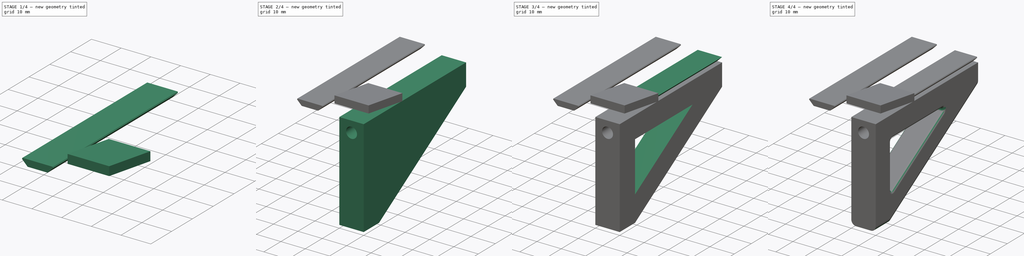
[diagram: build sequence overview — one tinted view per stage of 4, left to right]
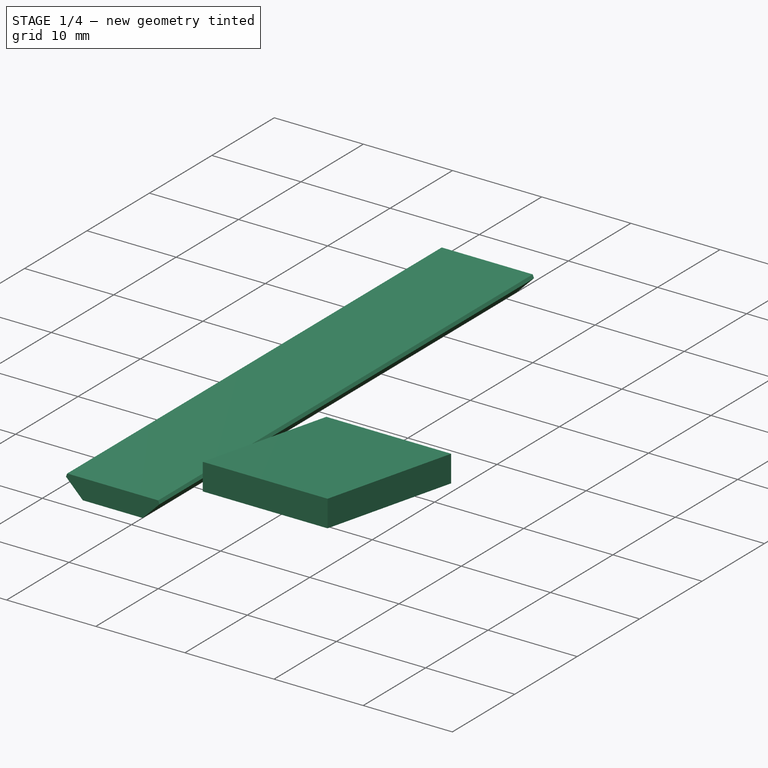
[diagram: stage 1 of 4 — iso view after this stage's code; geometry added in this stage tinted green]
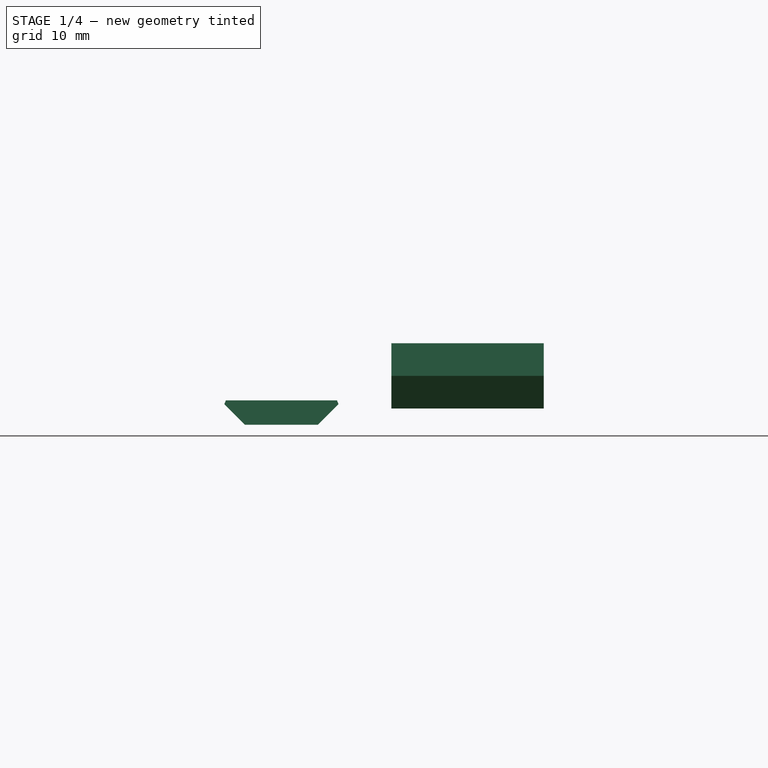
[diagram: stage 1 of 4 — front view after this stage's code; geometry added in this stage tinted green]
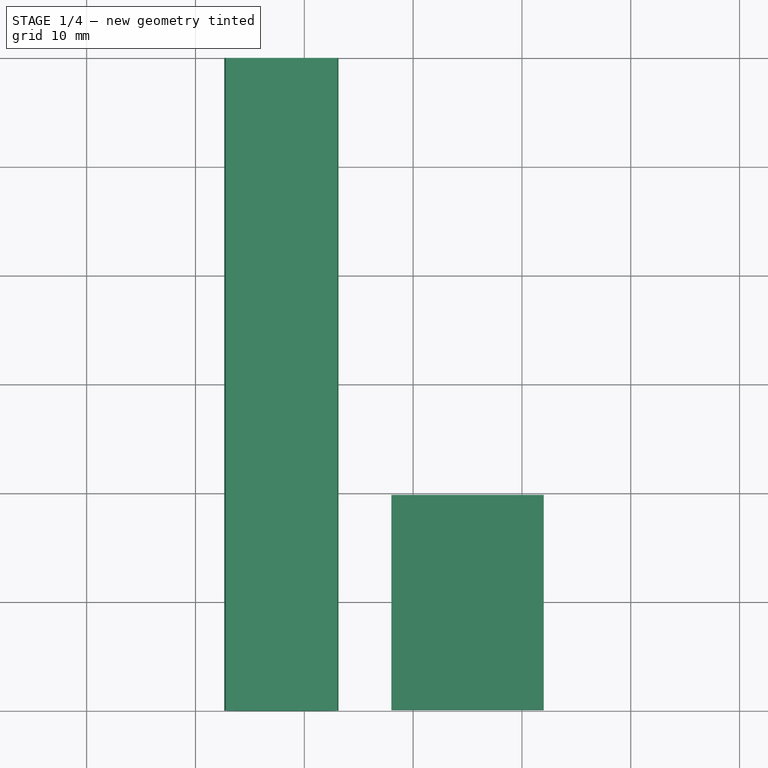
[diagram: stage 1 of 4 — top view after this stage's code; geometry added in this stage tinted green]
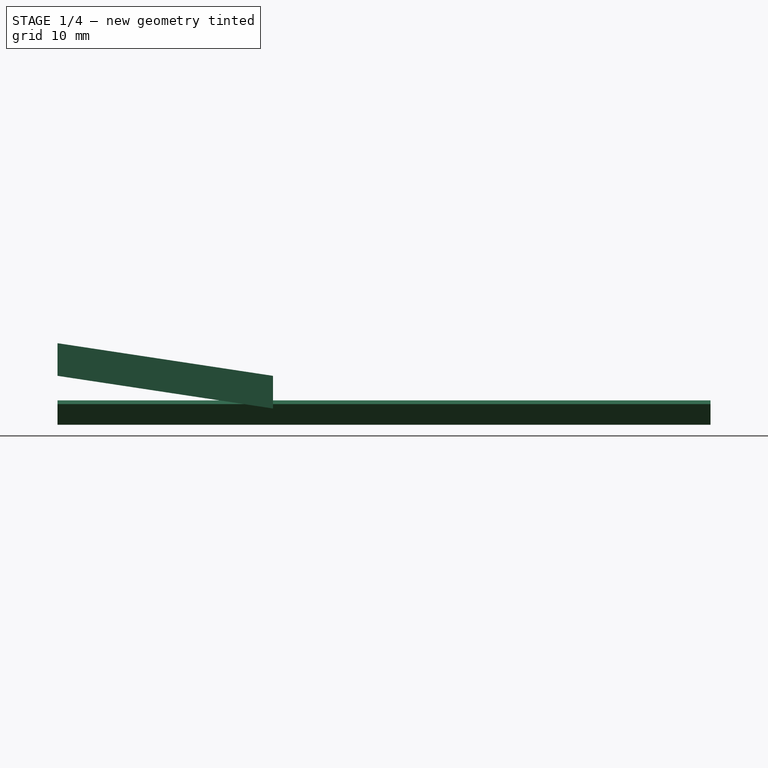
[diagram: stage 1 of 4 — right view after this stage's code; geometry added in this stage tinted green]
FCSTD DOCUMENT  (FreeCAD 0.19R23721 (Git))
Label: generic mount
License: All rights reserved
LicenseURL: http://en.wikipedia.org/wiki/All_rights_reserved
objects: Sketcher::SketchObject×8, PartDesign::Pad×3, PartDesign::Pocket×3, PartDesign::Body×3, PartDesign::Chamfer×2, PartDesign::Fillet×2, Spreadsheet::Sheet×1, PartDesign::AdditiveLoft×1
note: 33 computed .brp shape members not serialized (recipe doc carries the construction recipe); baked Part::Feature solids carry a one-line shape summary decoded from their .brp

FEATURE [PartDesign::Body] Body  label="mount"
  Group = -> [Sketch,Pad,Sketch001,Pocket,Sketch002,Pocket002,Pocket001,Sketch003,Pad001,Sketch004,Chamfer,Fillet,Fillet001]
  Origin = -> Origin
  Tip = -> Fillet001
FEATURE [Sketcher::SketchObject] Sketch005
  FullyConstrained = true
  MapMode = 5
  Placement = pos=(0,0,0) rot=(0,0.707107,0.707107;3.14159rad)
  Support = -> [XZ_Plane001]
  expr: Constraints[8] = <<dim>>.thickness + 2 * <<dim>>.dt_support_over
  expr: Constraints[9] = <<dim>>.dt_support_width
  expr: Constraints[10] = <<dim>>.dovetail_height - <<dim>>.dt_support_overlap + <<dim>>.dt_support_base_offset
  expr: Constraints[11] = <<dim>>.dt_support_over
  sketch-geometry (4):
    g0: LineSegment StartX=-12 StartY=7.5 StartZ=0 EndX=2 EndY=7.5 EndZ=0
    g1: LineSegment StartX=2 StartY=7.5 StartZ=0 EndX=2 EndY=4.5 EndZ=0
    g2: LineSegment StartX=2 StartY=4.5 StartZ=0 EndX=-12 EndY=4.5 EndZ=0
    g3: LineSegment StartX=-12 StartY=4.5 StartZ=0 EndX=-12 EndY=7.5 EndZ=0
  constraints (12):
    c: Coincident(g0,g1)
    c: Coincident(g1,g2)
    c: Coincident(g2,g3)
    c: Coincident(g3,g0)
    c: Horizontal(g0)
    c: Horizontal(g2)
    c: Vertical(g1)
    c: Vertical(g3)
    c: DistanceX(g0,g0) = 14
    c: DistanceY(g3,g3) = 3
    c: DistanceY(g-1,g2) = 4.5
    c: DistanceX(g-1,g1) = 2
FEATURE [Sketcher::SketchObject] Sketch006
  AttachmentOffset = pos=(0,0,19.8) rot=(0,0,1;0rad)
  FullyConstrained = true
  MapMode = 5
  Placement = pos=(0,19.8,4.4e-15) rot=(0,0.707107,0.707107;3.14159rad)
  Support = -> [XZ_Plane001]
  expr: .AttachmentOffset.Base.z = <<dim>>.dovetail_wall_offset - <<dim>>.dt_support_z_sep
  expr: Constraints[8] = <<dim>>.thickness + 2 * <<dim>>.dt_support_over
  expr: Constraints[9] = Sketch005.Constraints[9]
  expr: Constraints[10] = <<dim>>.dovetail_height - <<dim>>.dt_support_overlap
  expr: Constraints[11] = <<dim>>.dt_support_over
  sketch-geometry (4):
    g0: LineSegment StartX=-12 StartY=4.5 StartZ=0 EndX=2 EndY=4.5 EndZ=0
    g1: LineSegment StartX=2 StartY=4.5 StartZ=0 EndX=2 EndY=1.5 EndZ=0
    g2: LineSegment StartX=2 StartY=1.5 StartZ=0 EndX=-12 EndY=1.5 EndZ=0
    g3: LineSegment StartX=-12 StartY=1.5 StartZ=0 EndX=-12 EndY=4.5 EndZ=0
  constraints (12):
    c: Coincident(g0,g1)
    c: Coincident(g1,g2)
    c: Coincident(g2,g3)
    c: Coincident(g3,g0)
    c: Horizontal(g0)
    c: Horizontal(g2)
    c: Vertical(g1)
    c: Vertical(g3)
    c: DistanceX(g0,g0) = 14
    c: DistanceY(g3,g3) = 3
    c: DistanceY(g-1,g2) = 1.5
    c: DistanceX(g-1,g1) = 2
FEATURE [PartDesign::AdditiveLoft] AdditiveLoft
  Closed = false
  Placement = pos=(0,0,0) rot=(1,0,0;1.5708rad)
  Profile = -> Sketch006
  Ruled = false
  Sections = -> [Sketch005]
FEATURE [PartDesign::Body] Body001  label="dovetail support"
  Group = -> [Sketch005,Sketch006,AdditiveLoft]
  Origin = -> Origin001
  Tip = -> AdditiveLoft
FEATURE [Sketcher::SketchObject] Sketch007
  FullyConstrained = false
  MapMode = 5
  Placement = pos=(0,0,0) rot=(0,0.707107,0.707107;3.14159rad)
  Support = -> [XZ_Plane002]
  expr: Constraints[6] = <<dim>>.dovetail_height
  expr: Constraints[9] = <<dim>>.dovetail_width_outer
  expr: Constraints[16] = <<dim>>.dovetail_slot_slack
  expr: Constraints[8] = <<dim>>.dovetail_width_inner
  expr: Constraints[20] = <<dim>>.dovetail_slot_slack
  sketch-geometry (10):
    g0: LineSegment StartX=7.10111 StartY=2 StartZ=0 EndX=17.1011 EndY=2 EndZ=0
    g1: LineSegment StartX=17.1011 StartY=2 StartZ=0 EndX=15.1011 EndY=0 EndZ=0
    g2: LineSegment StartX=7.10111 StartY=2 StartZ=0 EndX=9.10111 EndY=0 EndZ=0
    g3: LineSegment StartX=9.10111 StartY=0 StartZ=0 EndX=15.1011 EndY=0 EndZ=0
    g4: LineSegment StartX=6.49756 StartY=2.25 StartZ=0 EndX=17.7047 EndY=2.25 EndZ=0
    g5: LineSegment StartX=17.7047 StartY=2.25 StartZ=0 EndX=15.4547 EndY=0 EndZ=0
    g6: LineSegment StartX=15.4547 StartY=0 StartZ=0 EndX=8.74756 EndY=0 EndZ=0
    g7: LineSegment StartX=8.74756 StartY=0 StartZ=0 EndX=6.49756 EndY=2.25 EndZ=0
    g8: LineSegment StartX=17.1011 StartY=2 StartZ=0 EndX=17.2779 EndY=1.82322 EndZ=0
    g9: LineSegment StartX=7.10111 StartY=2 StartZ=0 EndX=6.92433 EndY=1.82322 EndZ=0
  constraints (29):
    c: Horizontal(g0)
    c: Coincident(g0,g1)
    c: Coincident(g2,g0)
    c: Coincident(g3,g2)
    c: Coincident(g3,g1)
    c: Horizontal(g3)
    c: DistanceY(g2,g0) = 2
    c: Equal(g2,g1)
    c: DistanceX(g3,g3) = 6
    c: DistanceX(g0,g0) = 10
    c: Horizontal(g4)
    c: Coincident(g4,g5)
    c: Coincident(g5,g6)
    c: Coincident(g6,g7)
    c: Coincident(g7,g4)
    c: Parallel(g7,g2)
    c: DistanceY(g0,g4) = 0.25
    c: Coincident(g8,g0)
    c: PointOnObject(g8,g5)
    c: Perpendicular(g5,g8)
    c: Distance(g8) = 0.25
    c: Equal(g7,g5)
    c: Coincident(g9,g0)
    c: PointOnObject(g9,g7)
    c: Perpendicular(g7,g9)
    c: Equal(g9,g8)
    c: Horizontal(g6)
    c: Horizontal(g1,g5)
    c: Horizontal(g5,g-1)
FEATURE [PartDesign::Pad] Pad002
  Direction = (1,1,1)
  Length = 60
  Length2 = 100
  Placement = pos=(0,0,0) rot=(1,0,0;1.5708rad)
  Profile = -> Sketch007
  Type = 0
  expr: Length = <<dim>>.dovetail_slot_length
FEATURE [PartDesign::Chamfer] Chamfer001
  Angle = 45
  Base = -> Pad002 [Edge2,Edge1]
  BaseFeature = -> Pad002
  ChamferType = 0
  FlipDirection = false
  Placement = pos=(0,0,0) rot=(1,0,0;1.5708rad)
  Size = 0.5
  Size2 = 1
  SupportTransform = false
  expr: Size = <<dim>>.dovetail_trim
FEATURE [PartDesign::Body] Body002  label="dovetail slot mask"
  Group = -> [Sketch007,Pad002,Chamfer001]
  Origin = -> Origin002
  Tip = -> Chamfer001
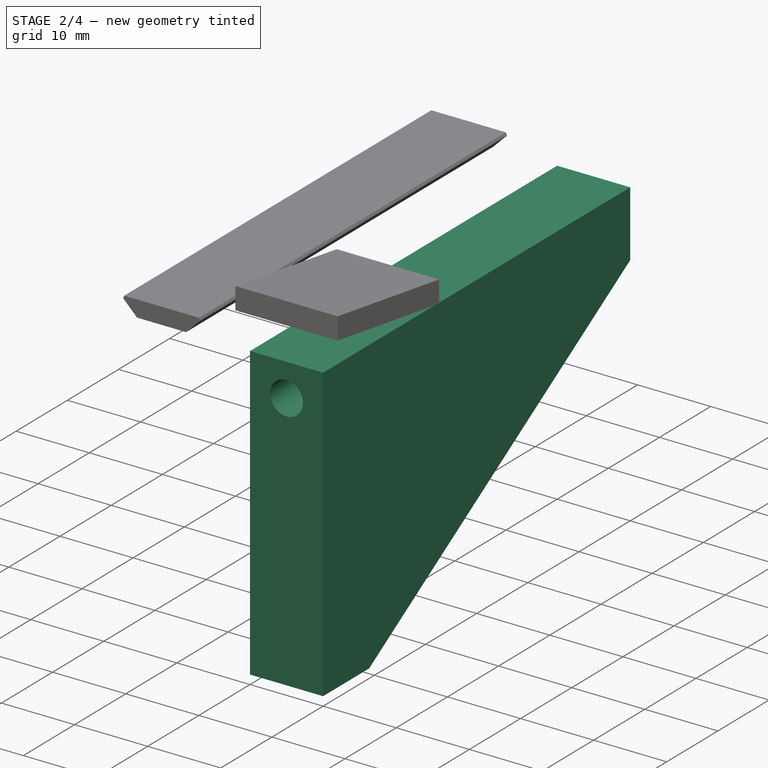
[diagram: stage 2 of 4 — iso view after this stage's code; geometry added in this stage tinted green]
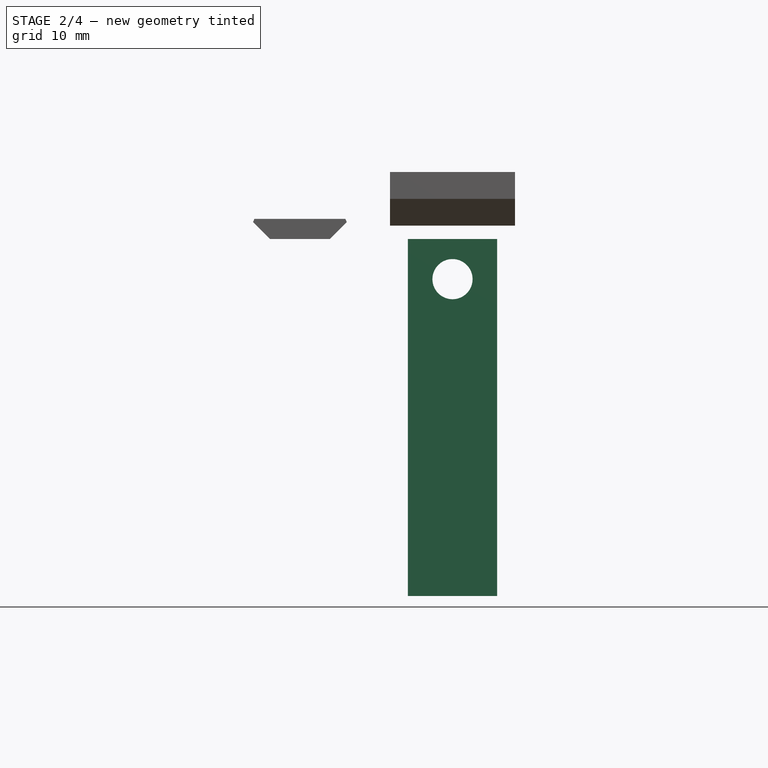
[diagram: stage 2 of 4 — front view after this stage's code; geometry added in this stage tinted green]
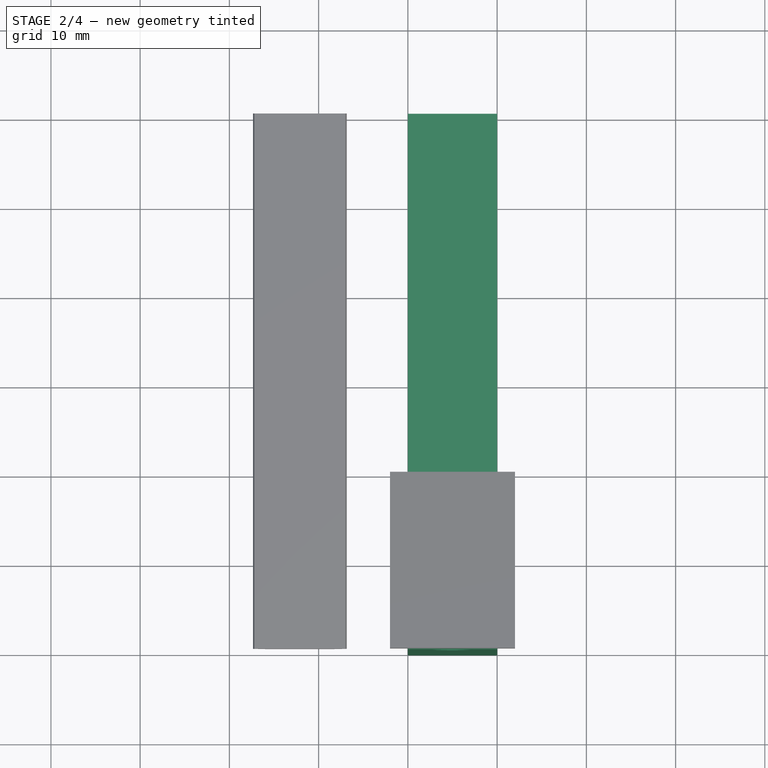
[diagram: stage 2 of 4 — top view after this stage's code; geometry added in this stage tinted green]
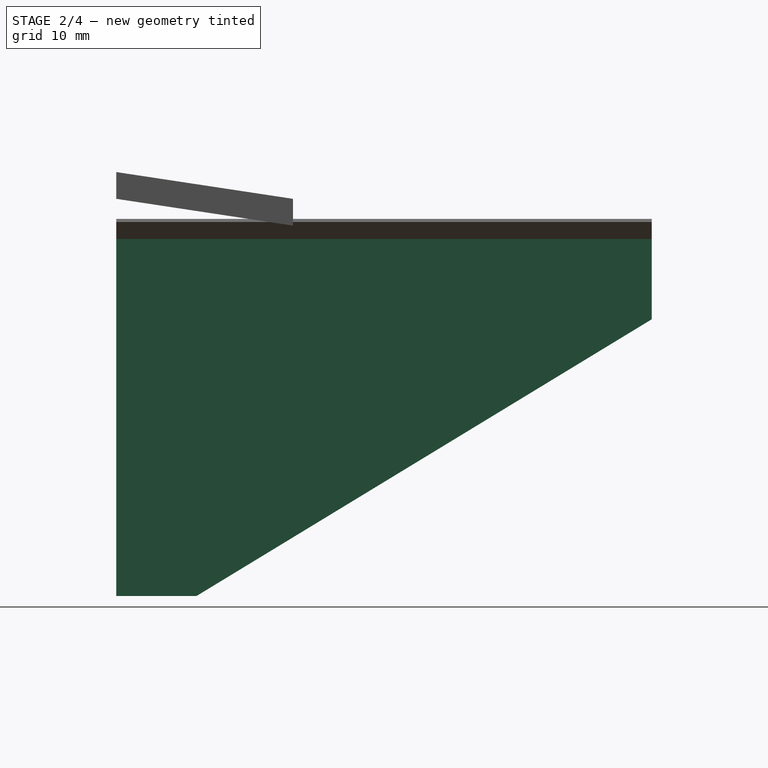
[diagram: stage 2 of 4 — right view after this stage's code; geometry added in this stage tinted green]
FEATURE [Spreadsheet::Sheet] Spreadsheet  label="dim"
  cells = A2=length; B2(length)=60; C2=full length of the horizontal support; A3=height; B3(height)=40; C3=full height; A4=thickness; B4(thickness)=10; C4=mount thickness; A5=bar_thickness; B5(bar_thickness)=9; C5=height/width of each support "bar"; A6=screw_hole_d; B6(screw_hole_d)=4.5; C6=diameter of the hole for the mounting screw; A7=screw_head_hole_d; B7(screw_head_hole_d)=7; C7=diameter of the screw head hole; A8=screw_head_hole_h; B8(screw_head_hole_h)=4; C8=depth of the screw head hole; A9=inner_chamfer; B9(inner_chamfer)=1; C9=radius of the inner chamfer; A10=outer_chamfer; B10(outer_chamfer)=2; C10=radius of the outer chamfer; A12=dovetail_width_outer; B12(dovetail_width_outer)==thickness; C12=outer dovetail joint width; A13=dovetail_width_inner; B13(dovetail_width_inner)==dovetail_width_outer - 2 * dovetail_height; C13=inner dovetail joint width; A14=dovetail_height; B14(dovetail_height)=2; C14=dovetail joint height; A15=dovetail_wall_offset; B15(dovetail_wall_offset)=20; C15=offset between the dovetail start and the wall; A16=dovetail_length; B16(dovetail_length)==length - dovetail_wall_offset; C16=length of the dovetail joint; A17=dovetail_trim; B17(dovetail_trim)=0.5; C17=dovetail fillet; A19=dovetail_slot_slack; B19(dovetail_slot_slack)=0.25; C19=size difference between the dovetail and the mask for the dovetail slot; A20=dovetail_slot_length; B20(dovetail_slot_length)==length; C20=length of the mask for the dovetail slot; A22=dt_support_over; B22(dt_support_over)=2; C22=mm to extend over the dovetail; A23=dt_support_width; B23(dt_support_width)=3; C23=support width; A24=dt_support_z_sep; B24(dt_support_z_sep)=0.2; C24=vertial separation between support and dovetail; A25=dt_support_overlap; B25(dt_support_overlap)=0.5; C25=horizontal overlap between support and dovetail; A26=dt_support_base_offset; B26(dt_support_base_offset)=3; C26=horizontal offset between bottom and top end of the dovetail support
FEATURE [Sketcher::SketchObject] Sketch
  FullyConstrained = true
  MapMode = 5
  Placement = pos=(0,0,0) rot=(0.57735,0.57735,0.57735;2.0944rad)
  Support = -> [YZ_Plane]
  expr: Constraints[13] = <<dim>>.bar_thickness
  expr: Constraints[12] = <<dim>>.bar_thickness
  expr: Constraints[11] = <<dim>>.height
  expr: Constraints[10] = <<dim>>.length
  sketch-geometry (5):
    g0: LineSegment StartX=0 StartY=0 StartZ=0 EndX=60 EndY=0 EndZ=0
    g1: LineSegment StartX=60 StartY=0 StartZ=0 EndX=60 EndY=-9 EndZ=0
    g2: LineSegment StartX=60 StartY=-9 StartZ=0 EndX=9 EndY=-40 EndZ=0
    g3: LineSegment StartX=9 StartY=-40 StartZ=0 EndX=0 EndY=-40 EndZ=0
    g4: LineSegment StartX=0 StartY=-40 StartZ=0 EndX=0 EndY=0 EndZ=0
  constraints (14):
    c: Coincident(g-1,g0)
    c: PointOnObject(g0,g-1)
    c: Coincident(g0,g1)
    c: Vertical(g1)
    c: Coincident(g1,g2)
    c: Coincident(g2,g3)
    c: PointOnObject(g3,g-2)
    c: Horizontal(g3)
    c: Coincident(g3,g4)
    c: Coincident(g4,g0)
    c: DistanceX(g0,g0) = 60
    c: DistanceY(g4,g4) = 40
    c: DistanceY(g1,g1) = 9
    c: DistanceX(g3,g3) = 9
FEATURE [PartDesign::Pad] Pad  label="basic shape"
  Direction = (1,1,1)
  Length = 10
  Length2 = 100
  Placement = pos=(0,0,0) rot=(0.57735,0.57735,0.57735;2.0944rad)
  Profile = -> Sketch
  Refine = true
  Type = 0
  expr: Length = <<dim>>.thickness
FEATURE [Sketcher::SketchObject] Sketch001
  FullyConstrained = true
  MapMode = 5
  Placement = pos=(0,0,0) rot=(1,0,0;1.5708rad)
  Support = -> [XZ_Plane]
  expr: Constraints[2] = -<<dim>>.bar_thickness / 2
  expr: Constraints[1] = <<dim>>.thickness / 2
  expr: Constraints[0] = <<dim>>.screw_hole_d
  sketch-geometry (1):
    g0: Circle CenterX=5 CenterY=-4.5 CenterZ=0 NormalX=0 NormalY=0 NormalZ=1 AngleXU=0 Radius=2.25
  constraints (3):
    c: Diameter(g0) = 4.5
    c: DistanceX(g0) = 5
    c: DistanceY(g0) = -4.5
FEATURE [PartDesign::Pocket] Pocket  label="screw hole"
  BaseFeature = -> Pad
  Length = 5
  Length2 = 100
  Placement = pos=(0,0,0) rot=(0.57735,0.57735,0.57735;2.0944rad)
  Profile = -> Sketch001
  Refine = true
  Type = 1
FEATURE [Sketcher::SketchObject] Sketch002
  FullyConstrained = true
  MapMode = 5
  Placement = pos=(0,0,0) rot=(-0.57735,0.57735,0.57735;4.18879rad)
  Support = -> [YZ_Plane]
  expr: Constraints[25] = <<dim>>.bar_thickness
  expr: Constraints[14] = <<dim>>.bar_thickness
  expr: Constraints[13] = <<dim>>.height
  expr: Constraints[12] = <<dim>>.bar_thickness
  expr: Constraints[11] = <<dim>>.length
  sketch-geometry (9):
    g0: LineSegment StartX=-42.6728 StartY=-9 StartZ=0 EndX=-9 EndY=-9 EndZ=0
    g1: LineSegment StartX=-9 StartY=-9 StartZ=0 EndX=-9 EndY=-29.4678 EndZ=0
    g2: LineSegment StartX=-9 StartY=-29.4678 StartZ=0 EndX=-42.6728 EndY=-9 EndZ=0
    g3: LineSegment StartX=-9 StartY=-40 StartZ=0 EndX=0 EndY=-40 EndZ=0
    g4: LineSegment StartX=-60 StartY=-9 StartZ=0 EndX=-9 EndY=-40 EndZ=0
    g5: LineSegment StartX=-60 StartY=0 StartZ=0 EndX=-60 EndY=-9 EndZ=0
    g6: LineSegment StartX=0 StartY=0 StartZ=0 EndX=-60 EndY=0 EndZ=0
    g7: LineSegment StartX=0 StartY=0 StartZ=0 EndX=0 EndY=-40 EndZ=0
    g8: LineSegment StartX=-42.6728 StartY=-9 StartZ=0 EndX=-47.3476 EndY=-16.6907 EndZ=0
  constraints (26):
    c: Horizontal(g0)
    c: Coincident(g0,g1)
    c: Vertical(g1)
    c: Coincident(g1,g2)
    c: Coincident(g2,g0)
    c: Coincident(g6,g5)
    c: Coincident(g5,g4)
    c: Coincident(g4,g3)
    c: Coincident(g7,g6)
    c: Coincident(g7,g3)
    c: Vertical(g7)
    c: DistanceX(g6,g6) = 60
    c: DistanceY(g5,g5) = 9
    c: DistanceY(g7,g7) = 40
    c: DistanceX(g3,g3) = 9
    c: Horizontal(g0,g4)
    c: Horizontal(g3)
    c: Vertical(g5)
    c: Horizontal(g6)
    c: Coincident(g6,g-1)
    c: Vertical(g1,g3)
    c: Coincident(g8,g0)
    c: PointOnObject(g8,g4)
    c: Perpendicular(g8,g4)
    c: Parallel(g2,g4)
    c: Distance(g8) = 9
FEATURE [Sketcher::SketchObject] Sketch003
  AttachmentOffset = pos=(0,0,20) rot=(0,0,1;0rad)
  FullyConstrained = true
  MapMode = 5
  Placement = pos=(0,20,4.4e-15) rot=(0,0.707107,0.707107;3.14159rad)
  Support = -> [XZ_Plane]
  expr: .AttachmentOffset.Base.z = <<dim>>.dovetail_wall_offset
  expr: Constraints[11] = <<dim>>.dovetail_height
  expr: Constraints[10] = (<<dim>>.dovetail_width_outer - <<dim>>.dovetail_width_inner) / 2
  expr: Constraints[9] = <<dim>>.dovetail_width_inner
  expr: Constraints[8] = <<dim>>.dovetail_width_outer
  sketch-geometry (4):
    g0: LineSegment StartX=-8 StartY=0 StartZ=0 EndX=-10 EndY=2 EndZ=0
    g1: LineSegment StartX=-10 StartY=2 StartZ=0 EndX=0 EndY=2 EndZ=0
    g2: LineSegment StartX=0 StartY=2 StartZ=0 EndX=-2 EndY=0 EndZ=0
    g3: LineSegment StartX=-2 StartY=0 StartZ=0 EndX=-8 EndY=0 EndZ=0
  constraints (12):
    c: PointOnObject(g0,g-1)
    c: Coincident(g0,g1)
    c: Horizontal(g1)
    c: Coincident(g1,g2)
    c: PointOnObject(g2,g-1)
    c: Coincident(g2,g3)
    c: Coincident(g3,g0)
    c: Vertical(g1,g-1)
    c: DistanceX(g1,g1) = 10
    c: DistanceX(g3,g3) = 6
    c: DistanceX(g2,g-1) = 2
    c: DistanceY(g2,g1) = 2
FEATURE [Sketcher::SketchObject] Sketch004
  AttachmentOffset = pos=(0,0,60) rot=(0,0,1;0rad)
  FullyConstrained = true
  MapMode = 5
  Placement = pos=(0,60,1.33e-14) rot=(0,0.707107,0.707107;3.14159rad)
  Support = -> [XZ_Plane]
  expr: Constraints[2] = <<dim>>.bar_thickness / 2
  expr: Constraints[1] = <<dim>>.thickness / 2
  expr: Constraints[0] = <<dim>>.screw_head_hole_d
  expr: .AttachmentOffset.Base.z = <<dim>>.length
  sketch-geometry (1):
    g0: Circle CenterX=-5 CenterY=-4.5 CenterZ=0 NormalX=0 NormalY=0 NormalZ=1 AngleXU=0 Radius=3.5
  constraints (3):
    c: Diameter(g0) = 7
    c: DistanceX(g0,g-1) = 5
    c: DistanceY(g0,g-1) = 4.5
FEATURE [PartDesign::Pocket] Pocket002  label="screw head hole"
  BaseFeature = -> Pocket
  Length = 4
  Length2 = 100
  Placement = pos=(0,0,0) rot=(0.57735,0.57735,0.57735;2.0944rad)
  Profile = -> Sketch004
  Refine = true
  Type = 0
  expr: Length = <<dim>>.screw_head_hole_h
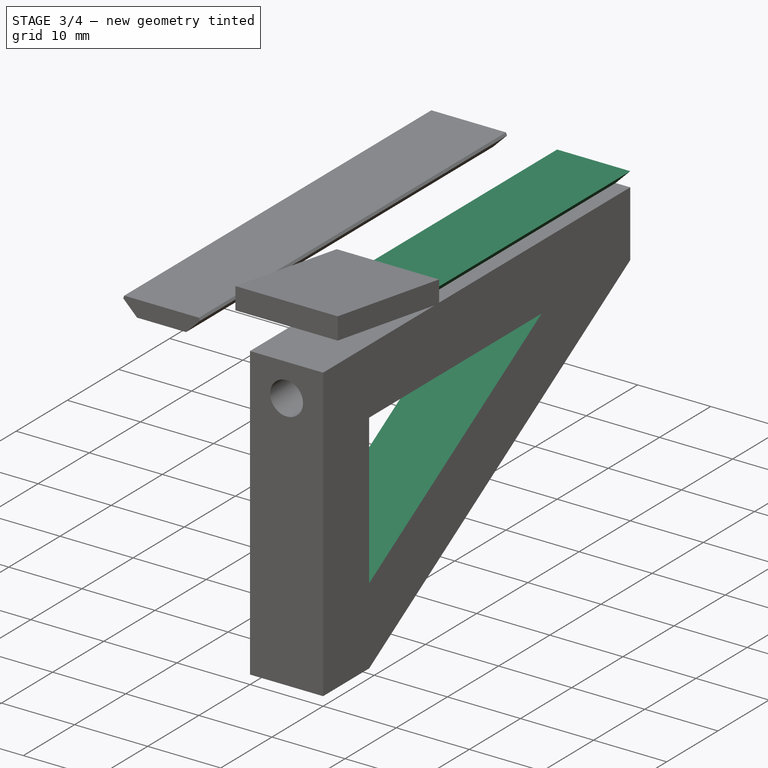
[diagram: stage 3 of 4 — iso view after this stage's code; geometry added in this stage tinted green]
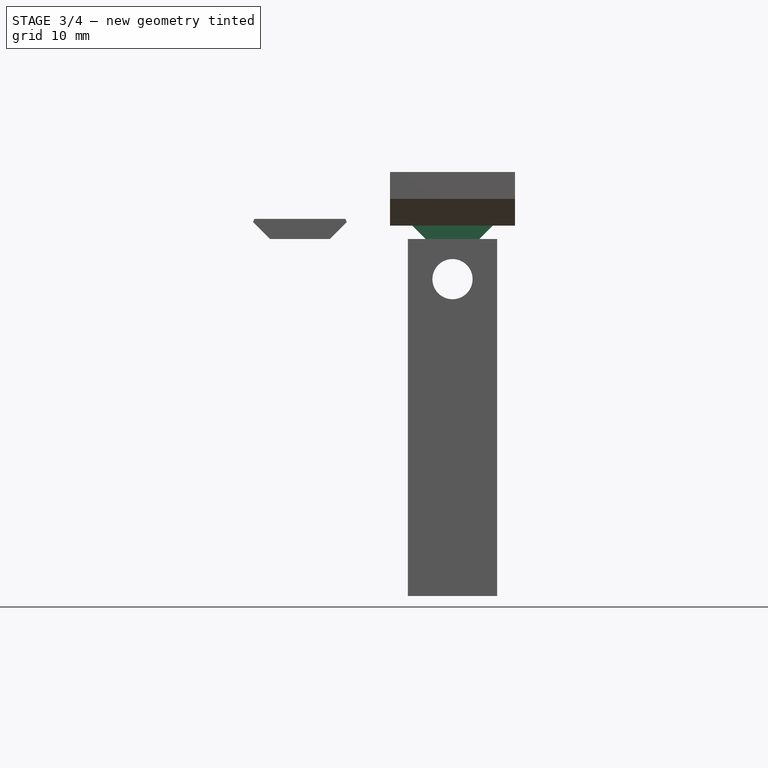
[diagram: stage 3 of 4 — front view after this stage's code; geometry added in this stage tinted green]
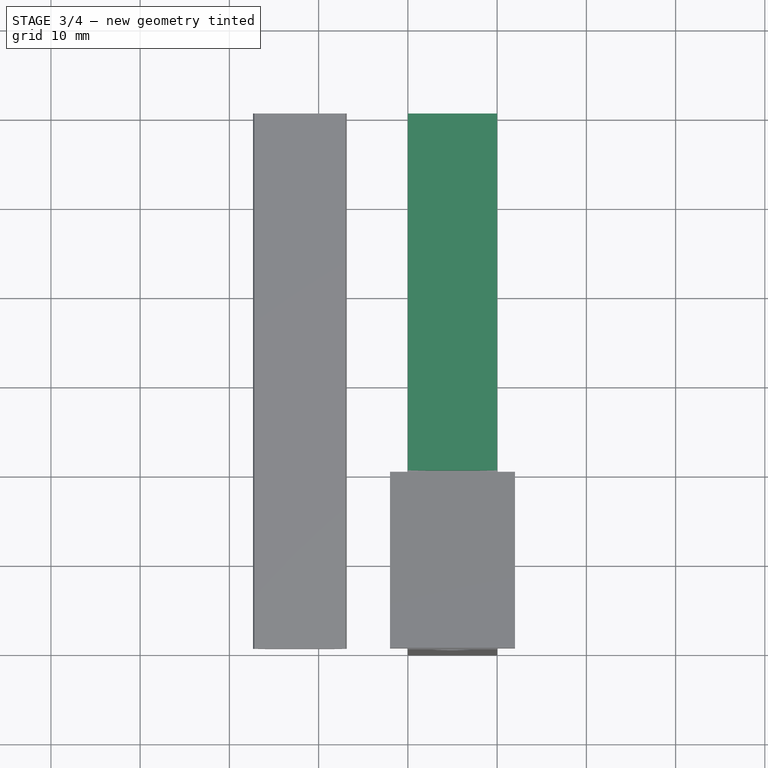
[diagram: stage 3 of 4 — top view after this stage's code; geometry added in this stage tinted green]
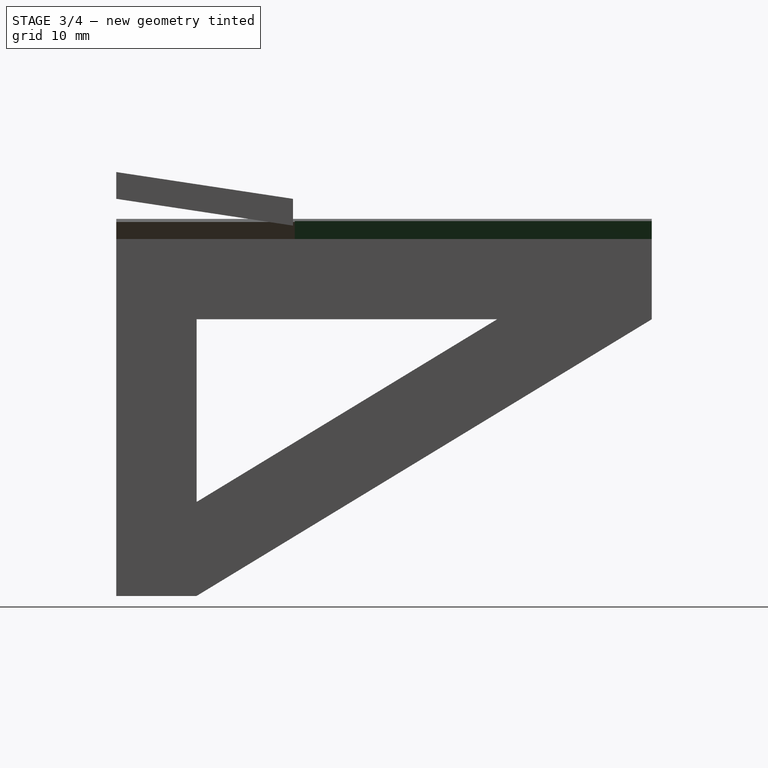
[diagram: stage 3 of 4 — right view after this stage's code; geometry added in this stage tinted green]
FEATURE [PartDesign::Pocket] Pocket001  label="inner cutoff"
  BaseFeature = -> Pocket002
  Length = 5
  Length2 = 100
  Placement = pos=(0,0,0) rot=(0.57735,0.57735,0.57735;2.0944rad)
  Profile = -> Sketch002
  Refine = true
  Type = 1
FEATURE [PartDesign::Pad] Pad001  label="dovetail"
  BaseFeature = -> Pocket001
  Direction = (1,1,1)
  Length = 40
  Length2 = 100
  Placement = pos=(0,0,0) rot=(0.57735,0.57735,0.57735;2.0944rad)
  Profile = -> Sketch003
  Refine = true
  Type = 0
  expr: Length = <<dim>>.dovetail_length
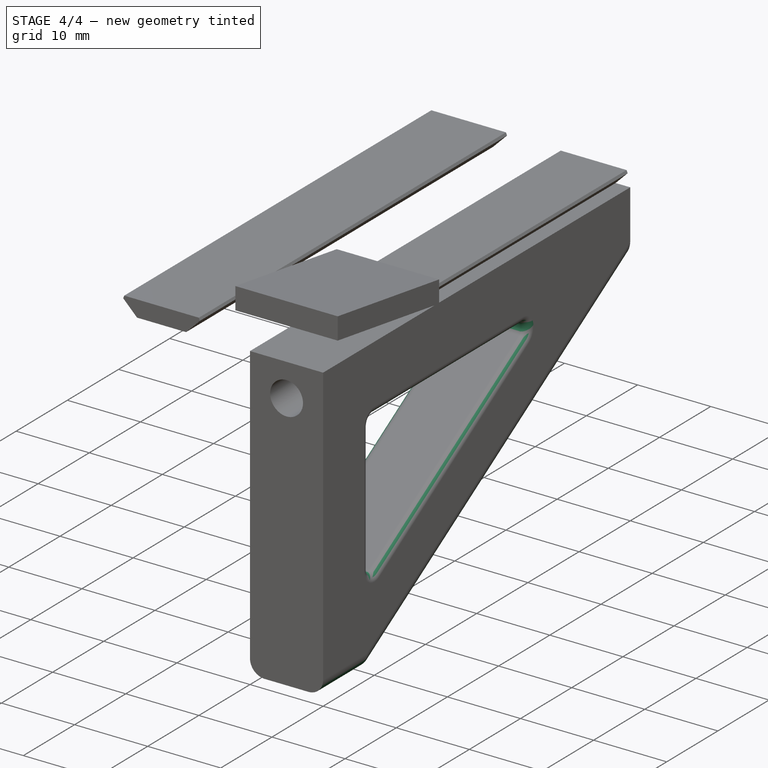
[diagram: stage 4 of 4 — iso view after this stage's code; geometry added in this stage tinted green]
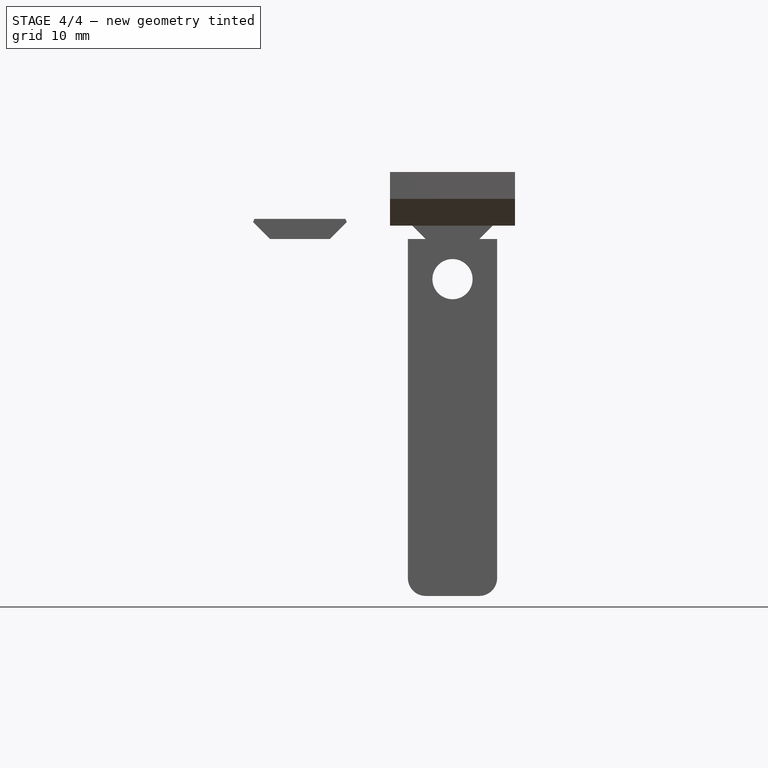
[diagram: stage 4 of 4 — front view after this stage's code; geometry added in this stage tinted green]
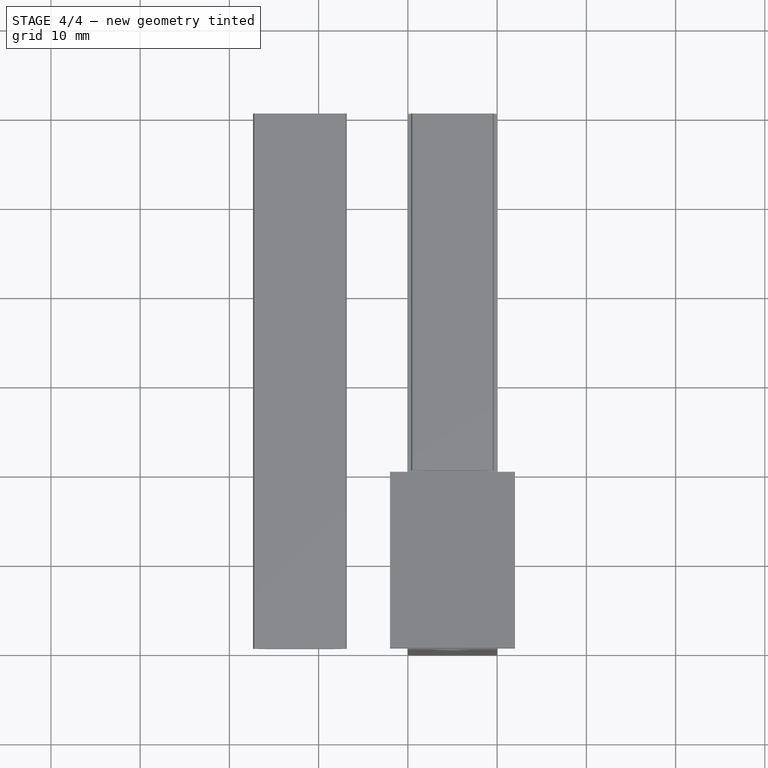
[diagram: stage 4 of 4 — top view after this stage's code; geometry added in this stage tinted green]
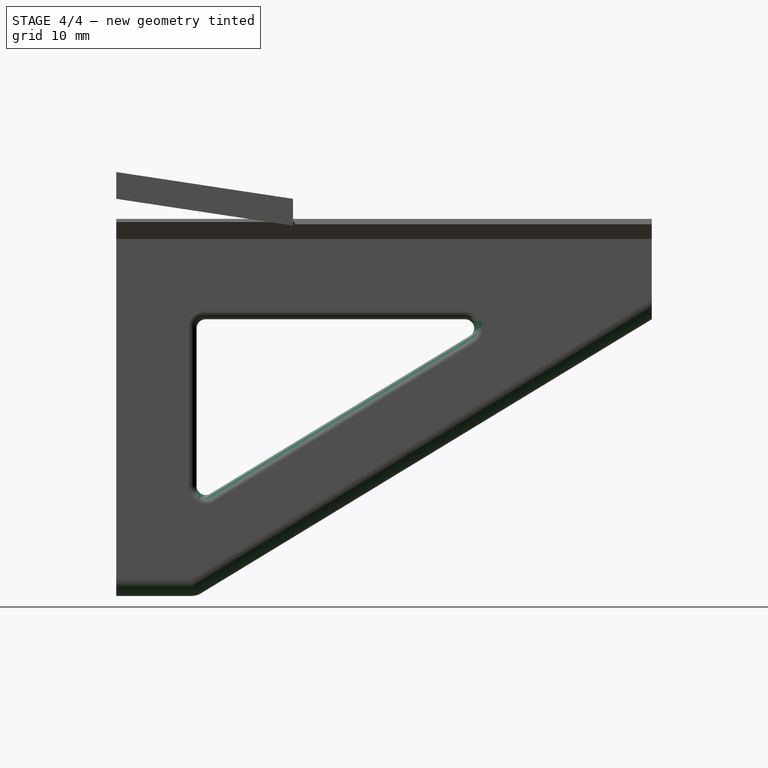
[diagram: stage 4 of 4 — right view after this stage's code; geometry added in this stage tinted green]
FEATURE [PartDesign::Chamfer] Chamfer  label="dovetail trim"
  Angle = 45
  Base = -> Pad001 [Edge20,Edge25]
  BaseFeature = -> Pad001
  ChamferType = 0
  FlipDirection = false
  Placement = pos=(0,0,0) rot=(0.57735,0.57735,0.57735;2.0944rad)
  Refine = true
  Size = 0.5
  Size2 = 1
  SupportTransform = false
  expr: Size = <<dim>>.dovetail_trim
FEATURE [PartDesign::Fillet] Fillet  label="inner chamfer"
  Base = -> Chamfer [Face17,Face16,Face15]
  BaseFeature = -> Chamfer
  Placement = pos=(0,0,0) rot=(0.57735,0.57735,0.57735;2.0944rad)
  Radius = 1
  Refine = true
  SupportTransform = false
  expr: Radius = <<dim>>.inner_chamfer
FEATURE [PartDesign::Fillet] Fillet001  label="outer chamfer"
  Base = -> Fillet [Edge44,Edge11,Edge43,Edge10,Edge42]
  BaseFeature = -> Fillet
  Placement = pos=(0,0,0) rot=(0.57735,0.57735,0.57735;2.0944rad)
  Radius = 2
  Refine = true
  SupportTransform = false
  expr: Radius = <<dim>>.outer_chamfer
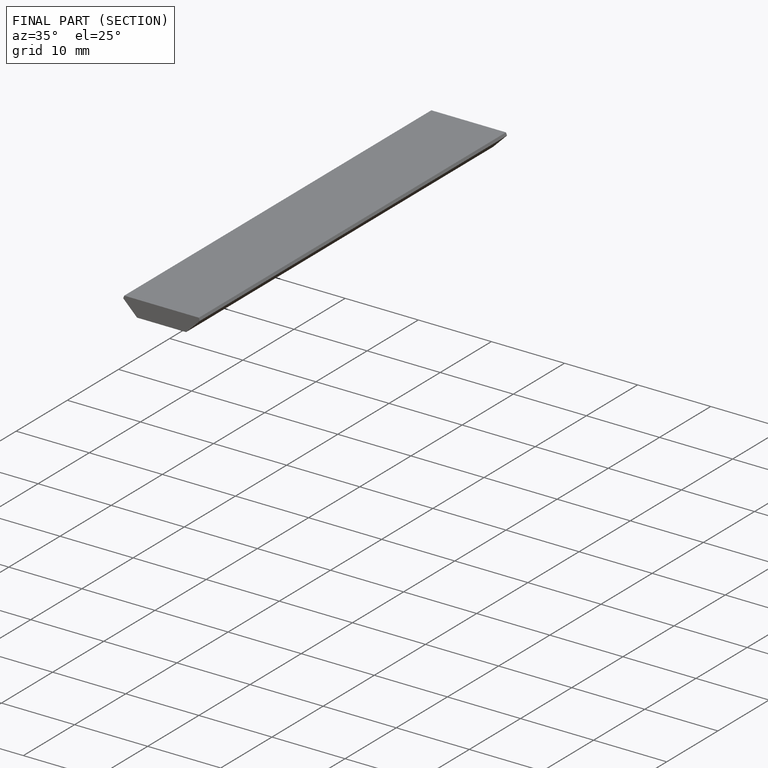
[diagram: finished part — half-section view (interior)]
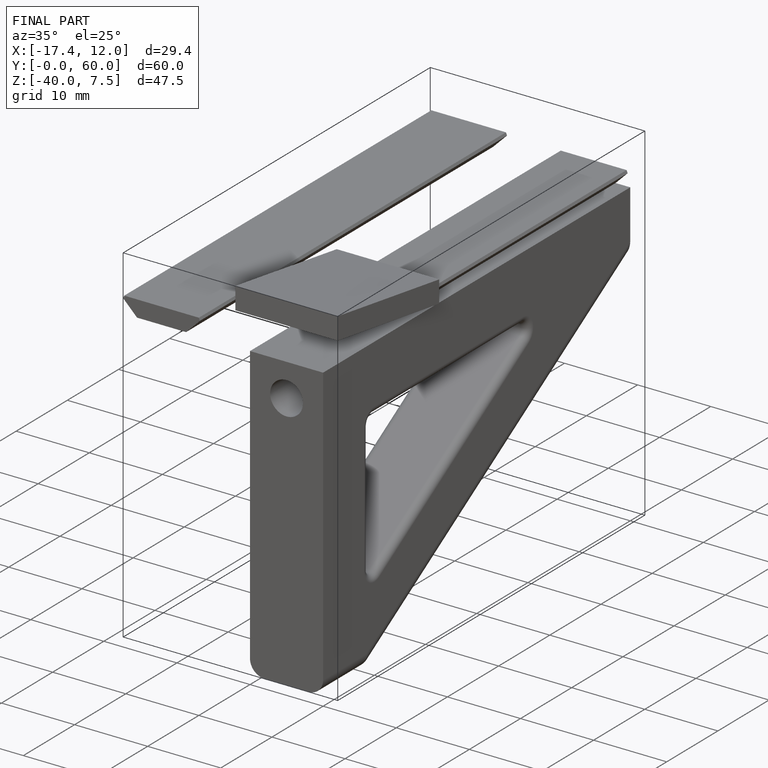
[diagram: finished part — iso view with bounding-box wireframe]
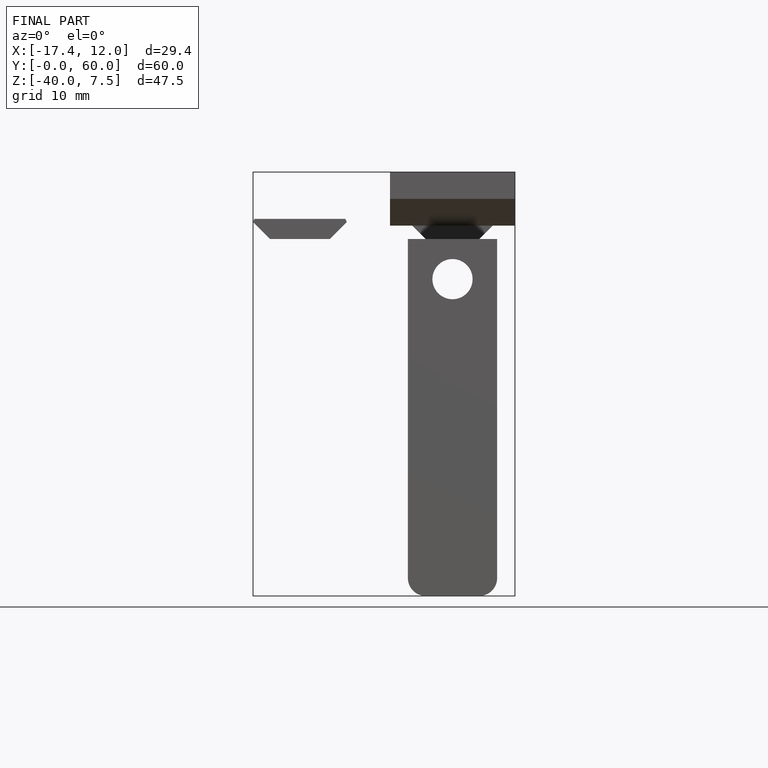
[diagram: finished part — front view with bounding-box wireframe]
